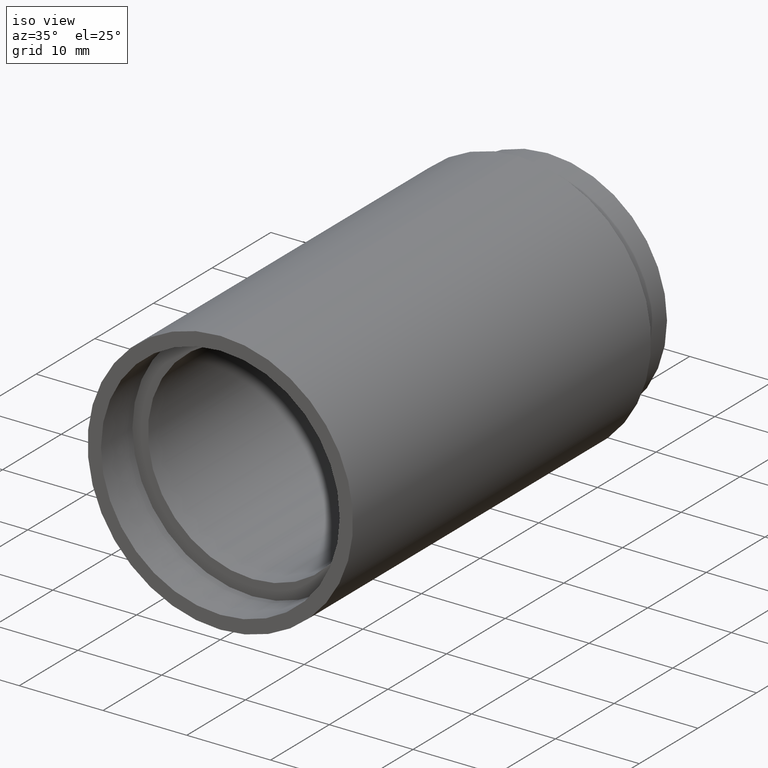
[diagram: clean part render]
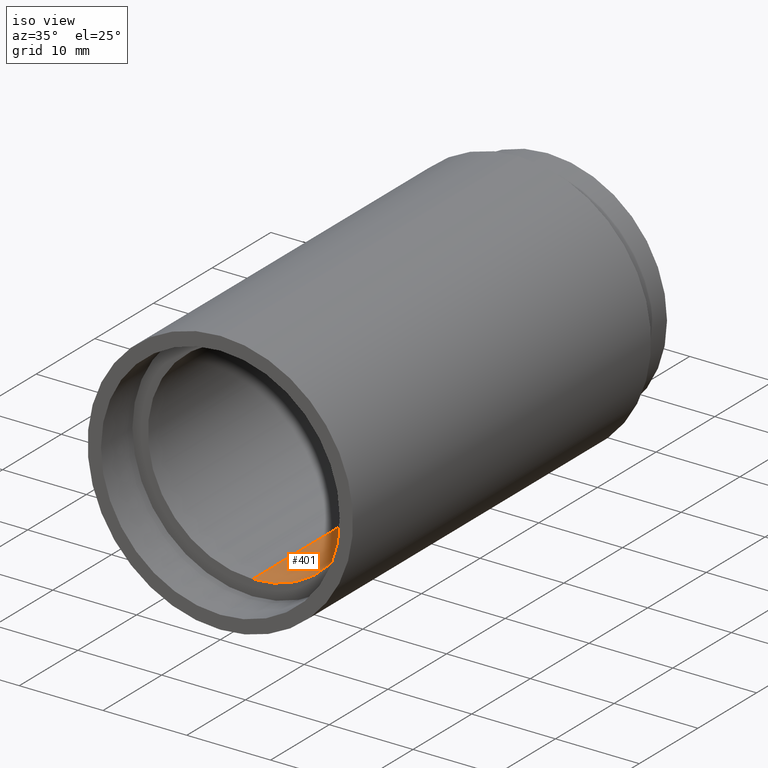
[diagram: same view with one face highlighted and labeled with its STEP entity id]
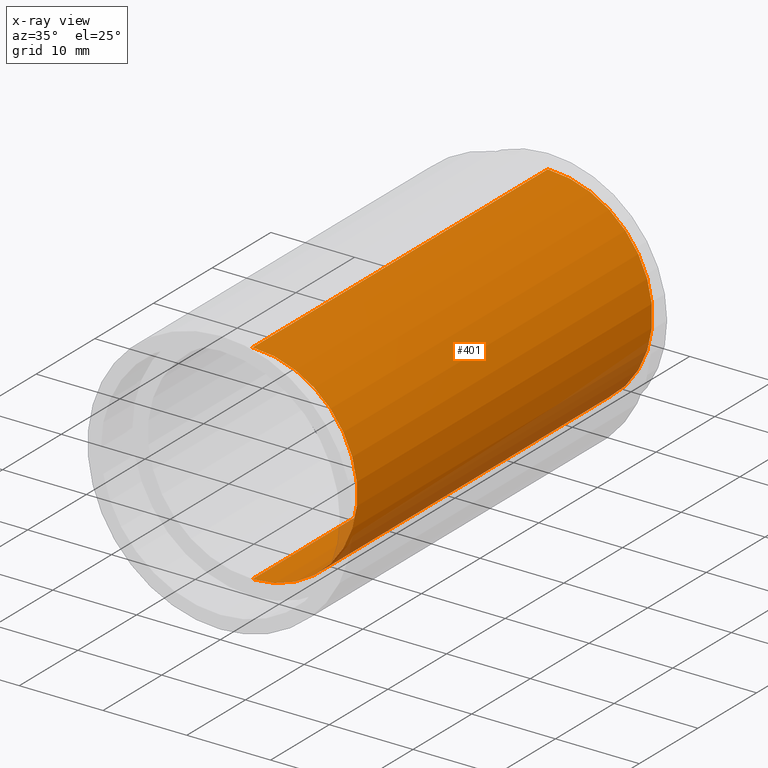
[diagram: x-ray of the same camera — body ghosted, the highlighted face saturated]
A machine part, iso view. The second image highlights one B-rep face of the part: STEP entity #401.
The next image is the same camera in x-ray: the body ghosted, the highlighted face saturated — about 8% of this face is hidden behind the body in this view.
In plain terms, the highlighted cylindrical surface (partial cylindrical patch) has radius 12.5 mm, axis along (-0, 1, -0).
Its self-contained STEP definition (entity closure, byte-faithful):
#24 = DIRECTION ( 'NONE',  ( -0.0000000000000000000, 1.000000000000000000, -0.0000000000000000000 ) ) ;
#43 = DIRECTION ( 'NONE',  ( -0.0000000000000000000, 1.000000000000000000, -0.0000000000000000000 ) ) ;
#61 = EDGE_CURVE ( 'NONE', #174, #541, #185, .T. ) ;
#81 = VERTEX_POINT ( 'NONE', #193 ) ;
#89 = DIRECTION ( 'NONE',  ( 0.0000000000000000000, 0.0000000000000000000, 1.000000000000000000 ) ) ;
#97 = DIRECTION ( 'NONE',  ( 0.0000000000000000000, 0.0000000000000000000, 1.000000000000000000 ) ) ;
#107 = ORIENTED_EDGE ( 'NONE', *, *, #61, .F. ) ;
#125 = VECTOR ( 'NONE', #326, 1000.000000000000000 ) ;
#130 = EDGE_CURVE ( 'NONE', #81, #503, #606, .T. ) ;
#167 = AXIS2_PLACEMENT_3D ( 'NONE', #428, #282, #97 ) ;
#174 = VERTEX_POINT ( 'NONE', #191 ) ;
#176 = EDGE_CURVE ( 'NONE', #503, #541, #554, .T. ) ;
#185 = LINE ( 'NONE', #430, #125 ) ;
#191 = CARTESIAN_POINT ( 'NONE',  ( 1.530808498934193900E-015, 5.499999999999976900, -12.50000000000002000 ) ) ;
#193 = CARTESIAN_POINT ( 'NONE',  ( 0.0000000000000000000, 5.499999999999976900, 12.50000000000002000 ) ) ;
#233 = CARTESIAN_POINT ( 'NONE',  ( 0.0000000000000000000, 161.3761669434274500, 12.50000000000002000 ) ) ;
#259 = CARTESIAN_POINT ( 'NONE',  ( 0.0000000000000000000, 55.79999999999999000, 12.50000000000002000 ) ) ;
#261 = VECTOR ( 'NONE', #43, 1000.000000000000000 ) ;
#265 = AXIS2_PLACEMENT_3D ( 'NONE', #321, #24, #89 ) ;
#282 = DIRECTION ( 'NONE',  ( -0.0000000000000000000, 1.000000000000000000, -0.0000000000000000000 ) ) ;
#283 = AXIS2_PLACEMENT_3D ( 'NONE', #439, #387, #579 ) ;
#289 = ORIENTED_EDGE ( 'NONE', *, *, #130, .T. ) ;
#309 = ORIENTED_EDGE ( 'NONE', *, *, #377, .F. ) ;
#321 = CARTESIAN_POINT ( 'NONE',  ( 0.0000000000000000000, 5.499999999999976900, 0.0000000000000000000 ) ) ;
#326 = DIRECTION ( 'NONE',  ( -0.0000000000000000000, 1.000000000000000000, -0.0000000000000000000 ) ) ;
#377 = EDGE_CURVE ( 'NONE', #81, #174, #404, .T. ) ;
#387 = DIRECTION ( 'NONE',  ( -0.0000000000000000000, 1.000000000000000000, -0.0000000000000000000 ) ) ;
#401 = ADVANCED_FACE ( 'NONE', ( #592 ), #410, .F. ) ;
#404 = CIRCLE ( 'NONE', #265, 12.50000000000002000 ) ;
#410 = CYLINDRICAL_SURFACE ( 'NONE', #167, 12.50000000000002000 ) ;
#412 = EDGE_LOOP ( 'NONE', ( #107, #309, #289, #474 ) ) ;
#428 = CARTESIAN_POINT ( 'NONE',  ( 0.0000000000000000000, 161.3761669434274500, 0.0000000000000000000 ) ) ;
#430 = CARTESIAN_POINT ( 'NONE',  ( 1.530808498934193900E-015, 161.3761669434274500, -12.50000000000002000 ) ) ;
#439 = CARTESIAN_POINT ( 'NONE',  ( 0.0000000000000000000, 55.79999999999999000, 0.0000000000000000000 ) ) ;
#474 = ORIENTED_EDGE ( 'NONE', *, *, #176, .T. ) ;
#503 = VERTEX_POINT ( 'NONE', #259 ) ;
#541 = VERTEX_POINT ( 'NONE', #542 ) ;
#542 = CARTESIAN_POINT ( 'NONE',  ( 1.530808498934193900E-015, 55.79999999999999000, -12.50000000000002000 ) ) ;
#554 = CIRCLE ( 'NONE', #283, 12.50000000000002000 ) ;
#579 = DIRECTION ( 'NONE',  ( 0.0000000000000000000, 0.0000000000000000000, 1.000000000000000000 ) ) ;
#592 = FACE_OUTER_BOUND ( 'NONE', #412, .T. ) ;
#606 = LINE ( 'NONE', #233, #261 ) ;